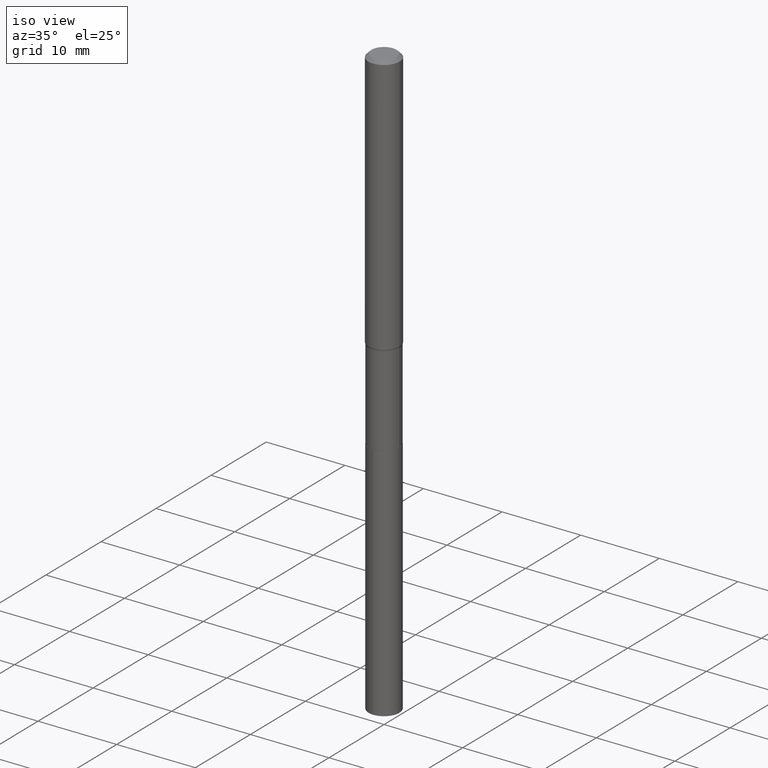
[diagram: clean part render]
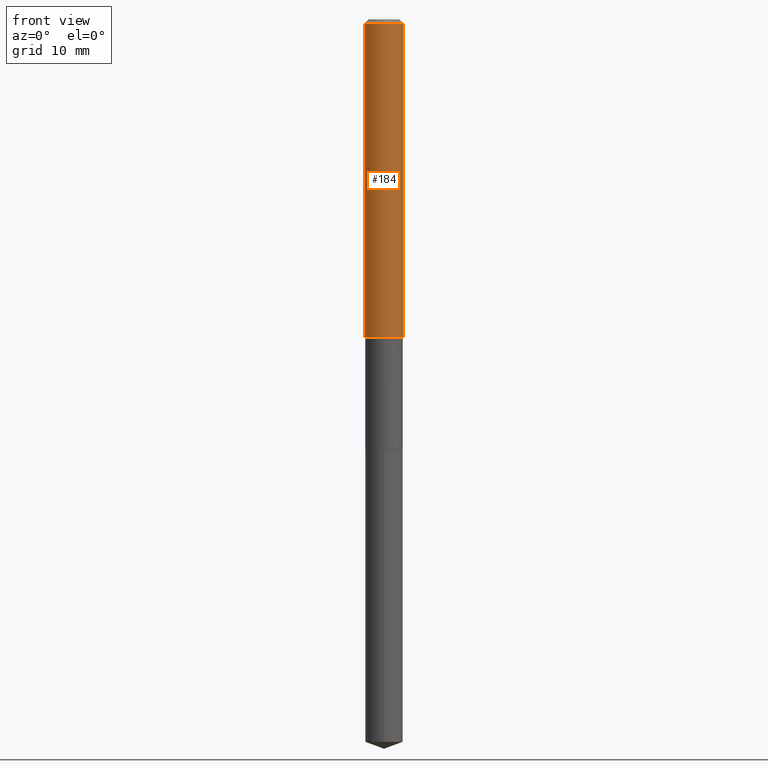
[diagram: tour spotlight — one face highlighted and labeled with its STEP entity id]
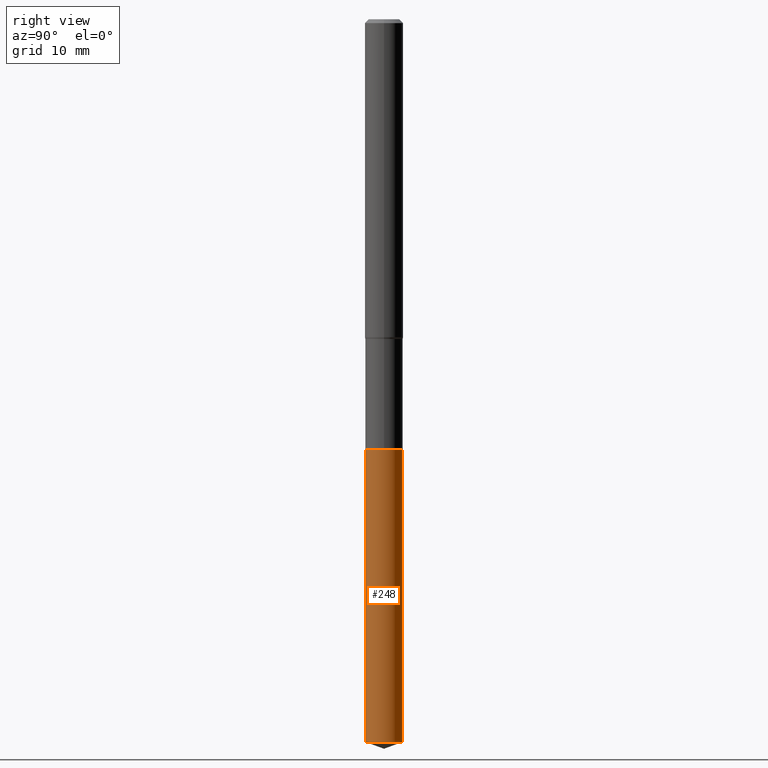
[diagram: tour spotlight — one face highlighted and labeled with its STEP entity id]
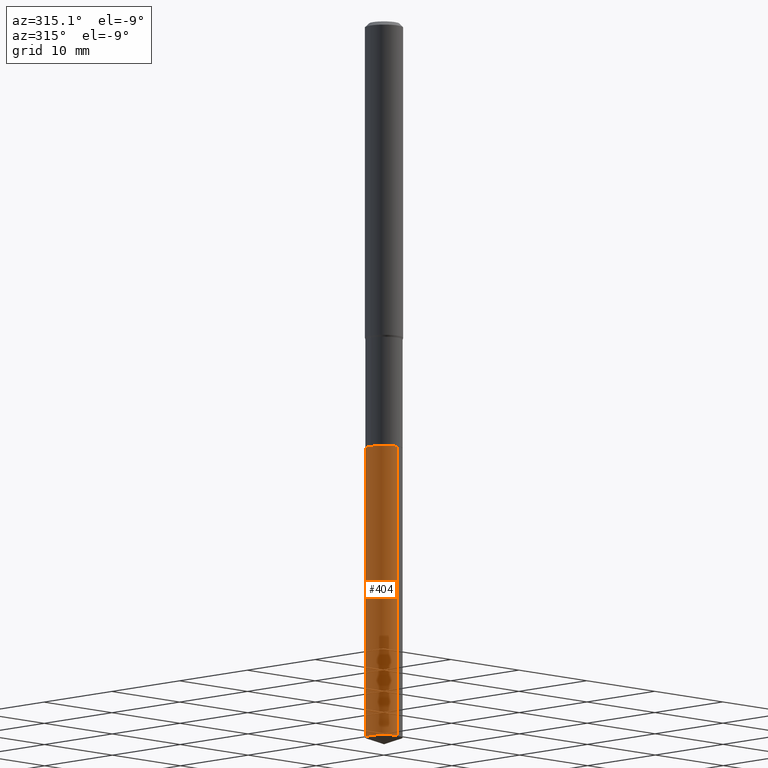
[diagram: tour spotlight — one face highlighted and labeled with its STEP entity id]
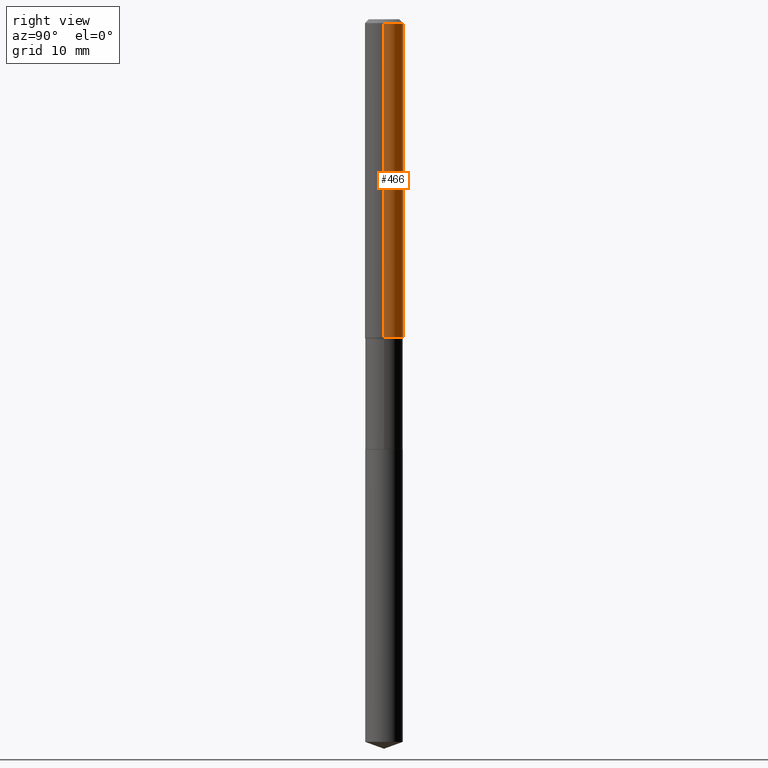
[diagram: tour spotlight — one face highlighted and labeled with its STEP entity id]
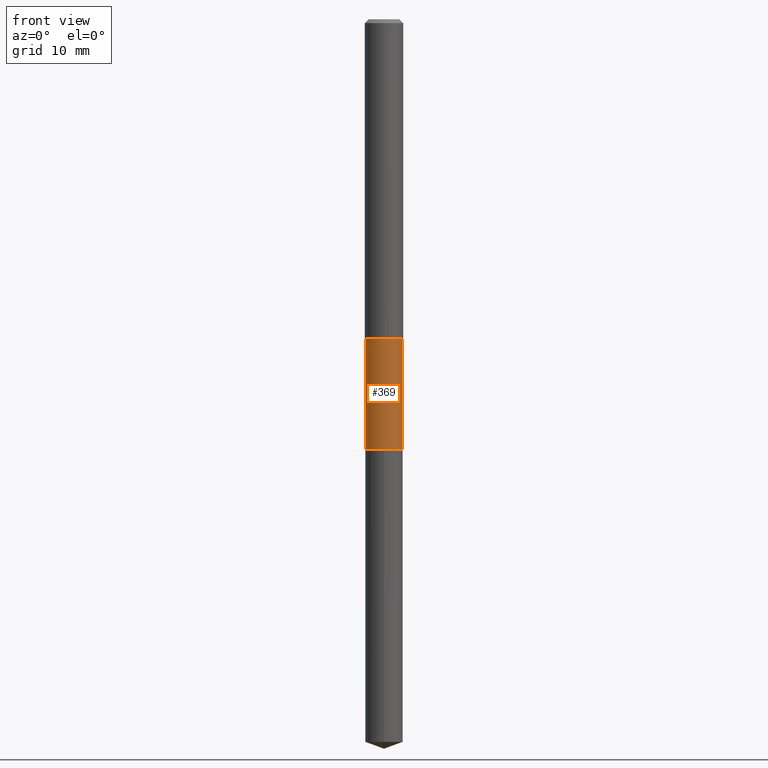
[diagram: tour spotlight — one face highlighted and labeled with its STEP entity id]
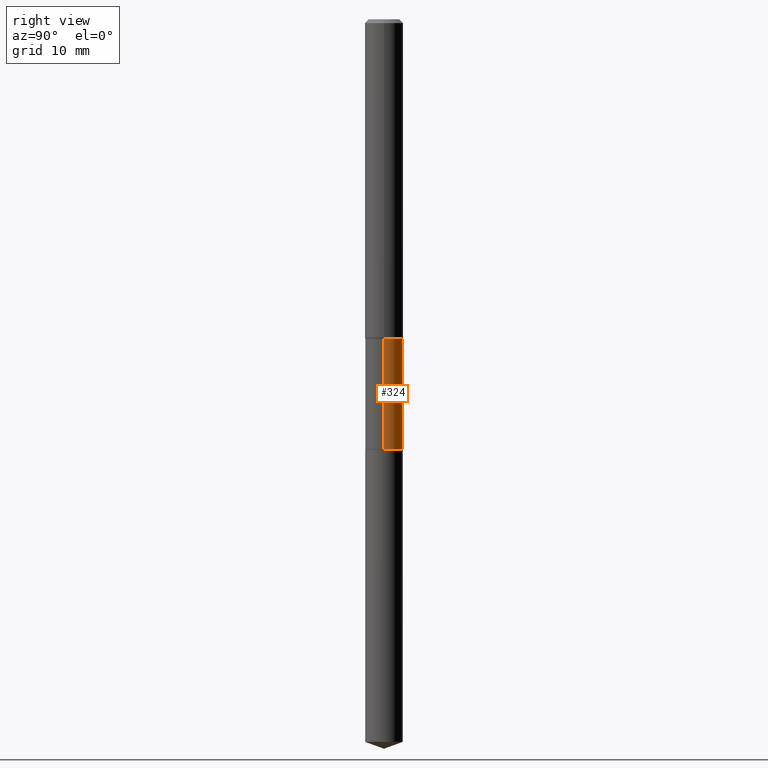
[diagram: tour spotlight — one face highlighted and labeled with its STEP entity id]
A machine part: a face-by-face anatomy tour. The part has 17 B-rep faces; the first image is the clean iso view, then the 6 largest visible faces are spotlighted one at a time (largest first), each with its STEP entity span.

Face 1 — front view, entity #184. In plain terms, the highlighted cylindrical surface (edge-blend (fillet) strip) has radius 2.0003 mm, axis along (-0, 0, 1).
Definition (entity closure, byte-faithful):
#12 = CARTESIAN_POINT ( 'NONE',  ( 3.189223658526408074E-29, -4.553366152526185029E-15, -1.304135898384861436 ) ) ;
#46 = DIRECTION ( 'NONE',  ( -2.445468806185136877E-29, 3.491481338843145188E-15, 1.000000000000000000 ) ) ;
#47 = VERTEX_POINT ( 'NONE', #418 ) ;
#49 = EDGE_CURVE ( 'NONE', #429, #381, #380, .T. ) ;
#69 = CARTESIAN_POINT ( 'NONE',  ( -0.07875000000000016709, -3.993813748115104650E-15, -1.304135898384861436 ) ) ;
#78 = DIRECTION ( 'NONE',  ( -2.445468806185136597E-29, 3.491481338843145583E-15, 1.000000000000000000 ) ) ;
#95 = DIRECTION ( 'NONE',  ( 1.000000000000000000, -6.982962677686265922E-15, 0.000000000000000000 ) ) ;
#100 = VECTOR ( 'NONE', #46, 39.37007874015748143 ) ;
#101 = ORIENTED_EDGE ( 'NONE', *, *, #334, .T. ) ;
#117 = AXIS2_PLACEMENT_3D ( 'NONE', #368, #260, #95 ) ;
#140 = VERTEX_POINT ( 'NONE', #156 ) ;
#147 = ORIENTED_EDGE ( 'NONE', *, *, #49, .F. ) ;
#156 = CARTESIAN_POINT ( 'NONE',  ( 0.07875000000000000056, -6.048991419545733705E-16, -0.01575000000000009032 ) ) ;
#158 = FACE_OUTER_BOUND ( 'NONE', #331, .T. ) ;
#168 = DIRECTION ( 'NONE',  ( -2.445468806185136597E-29, 3.491481338843145583E-15, 1.000000000000000000 ) ) ;
#184 = ADVANCED_FACE ( 'NONE', ( #158 ), #458, .T. ) ;
#206 = AXIS2_PLACEMENT_3D ( 'NONE', #12, #168, #316 ) ;
#217 = AXIS2_PLACEMENT_3D ( 'NONE', #268, #78, #382 ) ;
#238 = LINE ( 'NONE', #426, #434 ) ;
#260 = DIRECTION ( 'NONE',  ( -2.445468806185136597E-29, 3.491481338843145583E-15, 1.000000000000000000 ) ) ;
#268 = CARTESIAN_POINT ( 'NONE',  ( 0.000000000000000000, 0.000000000000000000, 0.000000000000000000 ) ) ;
#274 = CARTESIAN_POINT ( 'NONE',  ( -0.07875000000000008382, 5.595524044110794920E-16, -3.873661383575742696E-30 ) ) ;
#280 = ORIENTED_EDGE ( 'NONE', *, *, #476, .F. ) ;
#283 = DIRECTION ( 'NONE',  ( -2.445468806185136877E-29, 3.491481338843145188E-15, 1.000000000000000000 ) ) ;
#316 = DIRECTION ( 'NONE',  ( 1.000000000000000000, -6.982962677686271444E-15, 0.000000000000000000 ) ) ;
#331 = EDGE_LOOP ( 'NONE', ( #147, #483, #101, #280 ) ) ;
#334 = EDGE_CURVE ( 'NONE', #47, #140, #238, .T. ) ;
#368 = CARTESIAN_POINT ( 'NONE',  ( 3.851613369741612172E-31, -5.499083108677985842E-17, -0.01575000000000009032 ) ) ;
#380 = LINE ( 'NONE', #274, #100 ) ;
#381 = VERTEX_POINT ( 'NONE', #474 ) ;
#382 = DIRECTION ( 'NONE',  ( 1.000000000000000000, -6.982962677686267499E-15, 4.876176775795935232E-29 ) ) ;
#386 = CIRCLE ( 'NONE', #206, 0.07875000000000016709 ) ;
#414 = EDGE_CURVE ( 'NONE', #429, #47, #386, .T. ) ;
#418 = CARTESIAN_POINT ( 'NONE',  ( 0.07875000000000016709, -5.103274463393979164E-15, -1.304135898384861436 ) ) ;
#426 = CARTESIAN_POINT ( 'NONE',  ( 0.07875000000000008382, -5.499083108677941345E-16, 3.839989210939303220E-30 ) ) ;
#429 = VERTEX_POINT ( 'NONE', #69 ) ;
#434 = VECTOR ( 'NONE', #283, 39.37007874015748143 ) ;
#451 = CIRCLE ( 'NONE', #117, 0.07875000000000000056 ) ;
#458 = CYLINDRICAL_SURFACE ( 'NONE', #217, 0.07875000000000008382 ) ;
#474 = CARTESIAN_POINT ( 'NONE',  ( -0.07875000000000000056, -1.744626087395401803E-15, -0.01575000000000009032 ) ) ;
#476 = EDGE_CURVE ( 'NONE', #381, #140, #451, .T. ) ;
#483 = ORIENTED_EDGE ( 'NONE', *, *, #414, .T. ) ;

Face 2 — right view, entity #248. In plain terms, the highlighted cylindrical surface (edge-blend (fillet) strip) has radius 1.9495 mm, axis along (-0, 0, 1).
Definition (entity closure, byte-faithful):
#14 = AXIS2_PLACEMENT_3D ( 'NONE', #57, #17, #209 ) ;
#17 = DIRECTION ( 'NONE',  ( -2.445469513673863018E-29, 3.491480325679021518E-15, 1.000000000000000000 ) ) ;
#23 = ORIENTED_EDGE ( 'NONE', *, *, #348, .F. ) ;
#30 = VERTEX_POINT ( 'NONE', #230 ) ;
#34 = CARTESIAN_POINT ( 'NONE',  ( -5.359423855123483475E-16, -0.07675000000001032385, -2.964165284520069665 ) ) ;
#52 = LINE ( 'NONE', #245, #256 ) ;
#56 = VERTEX_POINT ( 'NONE', #198 ) ;
#57 = CARTESIAN_POINT ( 'NONE',  ( 4.313317880349343751E-29, -6.158274785451540536E-15, -1.763799999999999812 ) ) ;
#73 = CARTESIAN_POINT ( 'NONE',  ( 5.453415496959199755E-16, 0.07674999999999385092, -1.763800000000000257 ) ) ;
#75 = EDGE_CURVE ( 'NONE', #30, #56, #201, .T. ) ;
#76 = DIRECTION ( 'NONE',  ( -2.445469513673863018E-29, 3.491480325679021518E-15, 1.000000000000000000 ) ) ;
#84 = DIRECTION ( 'NONE',  ( -6.982962677686265133E-15, -1.000000000000000000, 3.559411066663534686E-15 ) ) ;
#86 = CARTESIAN_POINT ( 'NONE',  ( -5.359423855123778312E-16, -0.07675000000000616052, -1.763799999999999590 ) ) ;
#91 = AXIS2_PLACEMENT_3D ( 'NONE', #240, #243, #84 ) ;
#99 = ORIENTED_EDGE ( 'NONE', *, *, #252, .F. ) ;
#145 = EDGE_CURVE ( 'NONE', #477, #30, #307, .T. ) ;
#171 = ORIENTED_EDGE ( 'NONE', *, *, #145, .T. ) ;
#189 = CIRCLE ( 'NONE', #14, 0.07675000000000001266 ) ;
#198 = CARTESIAN_POINT ( 'NONE',  ( 5.453415496959496564E-16, 0.07674999999999386480, -1.763800000000000257 ) ) ;
#201 = LINE ( 'NONE', #73, #401 ) ;
#209 = DIRECTION ( 'NONE',  ( -6.982962677686265133E-15, -1.000000000000000000, 3.559411066663534686E-15 ) ) ;
#218 = EDGE_LOOP ( 'NONE', ( #171, #251, #99, #23 ) ) ;
#230 = CARTESIAN_POINT ( 'NONE',  ( 5.453415496959491634E-16, 0.07674999999998964595, -2.964165284520069665 ) ) ;
#240 = CARTESIAN_POINT ( 'NONE',  ( 4.313317880349343751E-29, -6.158274785451540536E-15, -1.763799999999999812 ) ) ;
#243 = DIRECTION ( 'NONE',  ( -2.445469513673863018E-29, 3.491480325679021518E-15, 1.000000000000000000 ) ) ;
#245 = CARTESIAN_POINT ( 'NONE',  ( -5.359423855123778312E-16, -0.07675000000000616052, -1.763799999999999590 ) ) ;
#248 = ADVANCED_FACE ( 'NONE', ( #427 ), #319, .T. ) ;
#251 = ORIENTED_EDGE ( 'NONE', *, *, #75, .T. ) ;
#252 = EDGE_CURVE ( 'NONE', #271, #56, #189, .T. ) ;
#256 = VECTOR ( 'NONE', #385, 39.37007874015748143 ) ;
#271 = VERTEX_POINT ( 'NONE', #86 ) ;
#304 = CARTESIAN_POINT ( 'NONE',  ( 7.248774588915626534E-29, -1.034932655998146602E-14, -2.964165284520069665 ) ) ;
#307 = CIRCLE ( 'NONE', #413, 0.07675000000000001266 ) ;
#319 = CYLINDRICAL_SURFACE ( 'NONE', #91, 0.07675000000000001266 ) ;
#343 = DIRECTION ( 'NONE',  ( -2.445469513673863018E-29, 3.491480325679021518E-15, 1.000000000000000000 ) ) ;
#348 = EDGE_CURVE ( 'NONE', #477, #271, #52, .T. ) ;
#385 = DIRECTION ( 'NONE',  ( -2.445469513673863018E-29, 3.491480325679021518E-15, 1.000000000000000000 ) ) ;
#401 = VECTOR ( 'NONE', #76, 39.37007874015748143 ) ;
#413 = AXIS2_PLACEMENT_3D ( 'NONE', #304, #343, #455 ) ;
#427 = FACE_OUTER_BOUND ( 'NONE', #218, .T. ) ;
#455 = DIRECTION ( 'NONE',  ( -6.982962677686265133E-15, -1.000000000000000000, 0.000000000000000000 ) ) ;
#477 = VERTEX_POINT ( 'NONE', #34 ) ;

Face 3 — auxiliary view, entity #404. In plain terms, the highlighted cylindrical surface (edge-blend (fillet) strip) has radius 1.9495 mm, axis along (-0, 0, 1).
Definition (entity closure, byte-faithful):
#9 = DIRECTION ( 'NONE',  ( -2.445469513673863018E-29, 3.491480325679021518E-15, 1.000000000000000000 ) ) ;
#18 = DIRECTION ( 'NONE',  ( -2.445469513673863018E-29, 3.491480325679021518E-15, 1.000000000000000000 ) ) ;
#30 = VERTEX_POINT ( 'NONE', #230 ) ;
#34 = CARTESIAN_POINT ( 'NONE',  ( -5.359423855123483475E-16, -0.07675000000001032385, -2.964165284520069665 ) ) ;
#52 = LINE ( 'NONE', #245, #256 ) ;
#56 = VERTEX_POINT ( 'NONE', #198 ) ;
#73 = CARTESIAN_POINT ( 'NONE',  ( 5.453415496959199755E-16, 0.07674999999999385092, -1.763800000000000257 ) ) ;
#75 = EDGE_CURVE ( 'NONE', #30, #56, #201, .T. ) ;
#76 = DIRECTION ( 'NONE',  ( -2.445469513673863018E-29, 3.491480325679021518E-15, 1.000000000000000000 ) ) ;
#86 = CARTESIAN_POINT ( 'NONE',  ( -5.359423855123778312E-16, -0.07675000000000616052, -1.763799999999999590 ) ) ;
#89 = CIRCLE ( 'NONE', #449, 0.07675000000000001266 ) ;
#104 = CIRCLE ( 'NONE', #226, 0.07675000000000001266 ) ;
#132 = DIRECTION ( 'NONE',  ( -2.445469513673863018E-29, 3.491480325679021518E-15, 1.000000000000000000 ) ) ;
#144 = EDGE_LOOP ( 'NONE', ( #180, #299, #379, #425 ) ) ;
#172 = DIRECTION ( 'NONE',  ( -6.982962677686265133E-15, -1.000000000000000000, 3.559411066663534686E-15 ) ) ;
#180 = ORIENTED_EDGE ( 'NONE', *, *, #75, .F. ) ;
#198 = CARTESIAN_POINT ( 'NONE',  ( 5.453415496959496564E-16, 0.07674999999999386480, -1.763800000000000257 ) ) ;
#201 = LINE ( 'NONE', #73, #401 ) ;
#204 = CARTESIAN_POINT ( 'NONE',  ( 4.313317880349343751E-29, -6.158274785451540536E-15, -1.763799999999999812 ) ) ;
#226 = AXIS2_PLACEMENT_3D ( 'NONE', #420, #18, #463 ) ;
#230 = CARTESIAN_POINT ( 'NONE',  ( 5.453415496959491634E-16, 0.07674999999998964595, -2.964165284520069665 ) ) ;
#231 = EDGE_CURVE ( 'NONE', #56, #271, #89, .T. ) ;
#235 = FACE_OUTER_BOUND ( 'NONE', #144, .T. ) ;
#245 = CARTESIAN_POINT ( 'NONE',  ( -5.359423855123778312E-16, -0.07675000000000616052, -1.763799999999999590 ) ) ;
#256 = VECTOR ( 'NONE', #385, 39.37007874015748143 ) ;
#271 = VERTEX_POINT ( 'NONE', #86 ) ;
#299 = ORIENTED_EDGE ( 'NONE', *, *, #330, .T. ) ;
#305 = AXIS2_PLACEMENT_3D ( 'NONE', #388, #9, #353 ) ;
#330 = EDGE_CURVE ( 'NONE', #30, #477, #104, .T. ) ;
#347 = CYLINDRICAL_SURFACE ( 'NONE', #305, 0.07675000000000001266 ) ;
#348 = EDGE_CURVE ( 'NONE', #477, #271, #52, .T. ) ;
#353 = DIRECTION ( 'NONE',  ( -6.982962677686265133E-15, -1.000000000000000000, 3.559411066663534686E-15 ) ) ;
#379 = ORIENTED_EDGE ( 'NONE', *, *, #348, .T. ) ;
#385 = DIRECTION ( 'NONE',  ( -2.445469513673863018E-29, 3.491480325679021518E-15, 1.000000000000000000 ) ) ;
#388 = CARTESIAN_POINT ( 'NONE',  ( 4.313317880349343751E-29, -6.158274785451540536E-15, -1.763799999999999812 ) ) ;
#401 = VECTOR ( 'NONE', #76, 39.37007874015748143 ) ;
#404 = ADVANCED_FACE ( 'NONE', ( #235 ), #347, .T. ) ;
#420 = CARTESIAN_POINT ( 'NONE',  ( 7.248774588915626534E-29, -1.034932655998146602E-14, -2.964165284520069665 ) ) ;
#425 = ORIENTED_EDGE ( 'NONE', *, *, #231, .F. ) ;
#449 = AXIS2_PLACEMENT_3D ( 'NONE', #204, #132, #172 ) ;
#463 = DIRECTION ( 'NONE',  ( -6.982962677686265133E-15, -1.000000000000000000, 0.000000000000000000 ) ) ;
#477 = VERTEX_POINT ( 'NONE', #34 ) ;

Face 4 — right view, entity #466. In plain terms, the highlighted cylindrical surface (edge-blend (fillet) strip) has radius 2.0003 mm, axis along (-0, 0, 1).
Definition (entity closure, byte-faithful):
#43 = ORIENTED_EDGE ( 'NONE', *, *, #289, .F. ) ;
#46 = DIRECTION ( 'NONE',  ( -2.445468806185136877E-29, 3.491481338843145188E-15, 1.000000000000000000 ) ) ;
#47 = VERTEX_POINT ( 'NONE', #418 ) ;
#49 = EDGE_CURVE ( 'NONE', #429, #381, #380, .T. ) ;
#69 = CARTESIAN_POINT ( 'NONE',  ( -0.07875000000000016709, -3.993813748115104650E-15, -1.304135898384861436 ) ) ;
#100 = VECTOR ( 'NONE', #46, 39.37007874015748143 ) ;
#110 = FACE_OUTER_BOUND ( 'NONE', #254, .T. ) ;
#124 = ORIENTED_EDGE ( 'NONE', *, *, #49, .T. ) ;
#140 = VERTEX_POINT ( 'NONE', #156 ) ;
#156 = CARTESIAN_POINT ( 'NONE',  ( 0.07875000000000000056, -6.048991419545733705E-16, -0.01575000000000009032 ) ) ;
#165 = DIRECTION ( 'NONE',  ( 1.000000000000000000, -6.982962677686271444E-15, 0.000000000000000000 ) ) ;
#167 = AXIS2_PLACEMENT_3D ( 'NONE', #270, #393, #312 ) ;
#215 = CARTESIAN_POINT ( 'NONE',  ( 0.000000000000000000, 0.000000000000000000, 0.000000000000000000 ) ) ;
#232 = CIRCLE ( 'NONE', #244, 0.07875000000000016709 ) ;
#238 = LINE ( 'NONE', #426, #434 ) ;
#239 = EDGE_CURVE ( 'NONE', #47, #429, #232, .T. ) ;
#244 = AXIS2_PLACEMENT_3D ( 'NONE', #464, #277, #165 ) ;
#254 = EDGE_LOOP ( 'NONE', ( #407, #124, #43, #329 ) ) ;
#270 = CARTESIAN_POINT ( 'NONE',  ( 3.851613369741612172E-31, -5.499083108677985842E-17, -0.01575000000000009032 ) ) ;
#274 = CARTESIAN_POINT ( 'NONE',  ( -0.07875000000000008382, 5.595524044110794920E-16, -3.873661383575742696E-30 ) ) ;
#277 = DIRECTION ( 'NONE',  ( -2.445468806185136597E-29, 3.491481338843145583E-15, 1.000000000000000000 ) ) ;
#283 = DIRECTION ( 'NONE',  ( -2.445468806185136877E-29, 3.491481338843145188E-15, 1.000000000000000000 ) ) ;
#289 = EDGE_CURVE ( 'NONE', #140, #381, #313, .T. ) ;
#312 = DIRECTION ( 'NONE',  ( 1.000000000000000000, -6.982962677686265922E-15, 0.000000000000000000 ) ) ;
#313 = CIRCLE ( 'NONE', #167, 0.07875000000000000056 ) ;
#329 = ORIENTED_EDGE ( 'NONE', *, *, #334, .F. ) ;
#332 = AXIS2_PLACEMENT_3D ( 'NONE', #215, #450, #437 ) ;
#334 = EDGE_CURVE ( 'NONE', #47, #140, #238, .T. ) ;
#380 = LINE ( 'NONE', #274, #100 ) ;
#381 = VERTEX_POINT ( 'NONE', #474 ) ;
#393 = DIRECTION ( 'NONE',  ( -2.445468806185136597E-29, 3.491481338843145583E-15, 1.000000000000000000 ) ) ;
#407 = ORIENTED_EDGE ( 'NONE', *, *, #239, .T. ) ;
#412 = CYLINDRICAL_SURFACE ( 'NONE', #332, 0.07875000000000008382 ) ;
#418 = CARTESIAN_POINT ( 'NONE',  ( 0.07875000000000016709, -5.103274463393979164E-15, -1.304135898384861436 ) ) ;
#426 = CARTESIAN_POINT ( 'NONE',  ( 0.07875000000000008382, -5.499083108677941345E-16, 3.839989210939303220E-30 ) ) ;
#429 = VERTEX_POINT ( 'NONE', #69 ) ;
#434 = VECTOR ( 'NONE', #283, 39.37007874015748143 ) ;
#437 = DIRECTION ( 'NONE',  ( 1.000000000000000000, -6.982962677686267499E-15, 4.876176775795935232E-29 ) ) ;
#450 = DIRECTION ( 'NONE',  ( -2.445468806185136597E-29, 3.491481338843145583E-15, 1.000000000000000000 ) ) ;
#464 = CARTESIAN_POINT ( 'NONE',  ( 3.189223658526408074E-29, -4.553366152526185029E-15, -1.304135898384861436 ) ) ;
#466 = ADVANCED_FACE ( 'NONE', ( #110 ), #412, .T. ) ;
#474 = CARTESIAN_POINT ( 'NONE',  ( -0.07875000000000000056, -1.744626087395401803E-15, -0.01575000000000009032 ) ) ;

Face 5 — front view, entity #369. In plain terms, the highlighted cylindrical surface (edge-blend (fillet) strip) has radius 1.9494 mm, axis along (-0, 0, 1).
Definition (entity closure, byte-faithful):
#32 = AXIS2_PLACEMENT_3D ( 'NONE', #461, #202, #350 ) ;
#45 = DIRECTION ( 'NONE',  ( -2.445468806185136597E-29, 3.491481338843145583E-15, 1.000000000000000000 ) ) ;
#74 = AXIS2_PLACEMENT_3D ( 'NONE', #392, #136, #286 ) ;
#79 = CYLINDRICAL_SURFACE ( 'NONE', #32, 0.07674999999999997102 ) ;
#87 = ORIENTED_EDGE ( 'NONE', *, *, #486, .F. ) ;
#103 = EDGE_CURVE ( 'NONE', #438, #247, #118, .T. ) ;
#109 = AXIS2_PLACEMENT_3D ( 'NONE', #422, #45, #197 ) ;
#118 = LINE ( 'NONE', #341, #249 ) ;
#136 = DIRECTION ( 'NONE',  ( -2.445468806185136597E-29, 3.491481338843145583E-15, 1.000000000000000000 ) ) ;
#149 = EDGE_LOOP ( 'NONE', ( #87, #257, #364, #242 ) ) ;
#178 = CARTESIAN_POINT ( 'NONE',  ( -0.07674999999999997102, 5.453415496958766868E-16, -3.775282681770638931E-30 ) ) ;
#197 = DIRECTION ( 'NONE',  ( 1.000000000000000000, -6.982962677686271444E-15, 0.000000000000000000 ) ) ;
#202 = DIRECTION ( 'NONE',  ( -2.445468806185136597E-29, 3.491481338843145583E-15, 1.000000000000000000 ) ) ;
#207 = CARTESIAN_POINT ( 'NONE',  ( -0.07674999999999994327, -4.822636434708517136E-15, -1.311600000000000099 ) ) ;
#223 = LINE ( 'NONE', #178, #394 ) ;
#242 = ORIENTED_EDGE ( 'NONE', *, *, #265, .F. ) ;
#247 = VERTEX_POINT ( 'NONE', #361 ) ;
#249 = VECTOR ( 'NONE', #416, 39.37007874015748143 ) ;
#257 = ORIENTED_EDGE ( 'NONE', *, *, #384, .T. ) ;
#265 = EDGE_CURVE ( 'NONE', #327, #247, #485, .T. ) ;
#286 = DIRECTION ( 'NONE',  ( 1.000000000000000000, -6.982962677686265133E-15, 0.000000000000000000 ) ) ;
#301 = CARTESIAN_POINT ( 'NONE',  ( -0.07675000000000001266, -4.822636434708517136E-15, -1.763300000000000090 ) ) ;
#327 = VERTEX_POINT ( 'NONE', #207 ) ;
#328 = CARTESIAN_POINT ( 'NONE',  ( 0.07675000000000001266, -6.692471430294540350E-15, -1.763300000000000090 ) ) ;
#337 = DIRECTION ( 'NONE',  ( -2.445468806185136877E-29, 3.491481338843145188E-15, 1.000000000000000000 ) ) ;
#341 = CARTESIAN_POINT ( 'NONE',  ( 0.07674999999999997102, -5.359423855124207255E-16, 3.742465675423379404E-30 ) ) ;
#350 = DIRECTION ( 'NONE',  ( 1.000000000000000000, -6.982962677686265922E-15, 4.876176775795935793E-29 ) ) ;
#361 = CARTESIAN_POINT ( 'NONE',  ( 0.07674999999999994327, -5.115369309539090128E-15, -1.311600000000000099 ) ) ;
#362 = FACE_OUTER_BOUND ( 'NONE', #149, .T. ) ;
#364 = ORIENTED_EDGE ( 'NONE', *, *, #103, .T. ) ;
#369 = ADVANCED_FACE ( 'NONE', ( #362 ), #79, .T. ) ;
#384 = EDGE_CURVE ( 'NONE', #442, #438, #423, .T. ) ;
#392 = CARTESIAN_POINT ( 'NONE',  ( 3.207476886192425525E-29, -4.579426924026669600E-15, -1.311600000000000099 ) ) ;
#394 = VECTOR ( 'NONE', #337, 39.37007874015748143 ) ;
#416 = DIRECTION ( 'NONE',  ( -2.445468806185136877E-29, 3.491481338843145188E-15, 1.000000000000000000 ) ) ;
#422 = CARTESIAN_POINT ( 'NONE',  ( 4.312095145946251510E-29, -6.156529044782119032E-15, -1.763300000000000090 ) ) ;
#423 = CIRCLE ( 'NONE', #109, 0.07675000000000001266 ) ;
#438 = VERTEX_POINT ( 'NONE', #328 ) ;
#442 = VERTEX_POINT ( 'NONE', #301 ) ;
#461 = CARTESIAN_POINT ( 'NONE',  ( 0.000000000000000000, 0.000000000000000000, 0.000000000000000000 ) ) ;
#485 = CIRCLE ( 'NONE', #74, 0.07674999999999994327 ) ;
#486 = EDGE_CURVE ( 'NONE', #442, #327, #223, .T. ) ;

Face 6 — right view, entity #324. In plain terms, the highlighted cylindrical surface (edge-blend (fillet) strip) has radius 1.9494 mm, axis along (-0, 0, 1).
Definition (entity closure, byte-faithful):
#6 = CARTESIAN_POINT ( 'NONE',  ( 0.000000000000000000, 0.000000000000000000, 0.000000000000000000 ) ) ;
#27 = ORIENTED_EDGE ( 'NONE', *, *, #68, .F. ) ;
#50 = CARTESIAN_POINT ( 'NONE',  ( 4.312095145946251510E-29, -6.156529044782119032E-15, -1.763300000000000090 ) ) ;
#60 = EDGE_CURVE ( 'NONE', #438, #442, #224, .T. ) ;
#68 = EDGE_CURVE ( 'NONE', #247, #327, #373, .T. ) ;
#82 = DIRECTION ( 'NONE',  ( 1.000000000000000000, -6.982962677686265133E-15, 0.000000000000000000 ) ) ;
#93 = EDGE_LOOP ( 'NONE', ( #371, #325, #27, #297 ) ) ;
#103 = EDGE_CURVE ( 'NONE', #438, #247, #118, .T. ) ;
#118 = LINE ( 'NONE', #341, #249 ) ;
#134 = CYLINDRICAL_SURFACE ( 'NONE', #159, 0.07674999999999997102 ) ;
#146 = AXIS2_PLACEMENT_3D ( 'NONE', #50, #349, #227 ) ;
#159 = AXIS2_PLACEMENT_3D ( 'NONE', #6, #273, #359 ) ;
#163 = CARTESIAN_POINT ( 'NONE',  ( 3.207476886192425525E-29, -4.579426924026669600E-15, -1.311600000000000099 ) ) ;
#178 = CARTESIAN_POINT ( 'NONE',  ( -0.07674999999999997102, 5.453415496958766868E-16, -3.775282681770638931E-30 ) ) ;
#192 = DIRECTION ( 'NONE',  ( -2.445468806185136597E-29, 3.491481338843145583E-15, 1.000000000000000000 ) ) ;
#207 = CARTESIAN_POINT ( 'NONE',  ( -0.07674999999999994327, -4.822636434708517136E-15, -1.311600000000000099 ) ) ;
#223 = LINE ( 'NONE', #178, #394 ) ;
#224 = CIRCLE ( 'NONE', #146, 0.07675000000000001266 ) ;
#227 = DIRECTION ( 'NONE',  ( 1.000000000000000000, -6.982962677686271444E-15, 0.000000000000000000 ) ) ;
#247 = VERTEX_POINT ( 'NONE', #361 ) ;
#249 = VECTOR ( 'NONE', #416, 39.37007874015748143 ) ;
#273 = DIRECTION ( 'NONE',  ( -2.445468806185136597E-29, 3.491481338843145583E-15, 1.000000000000000000 ) ) ;
#297 = ORIENTED_EDGE ( 'NONE', *, *, #103, .F. ) ;
#301 = CARTESIAN_POINT ( 'NONE',  ( -0.07675000000000001266, -4.822636434708517136E-15, -1.763300000000000090 ) ) ;
#324 = ADVANCED_FACE ( 'NONE', ( #432 ), #134, .T. ) ;
#325 = ORIENTED_EDGE ( 'NONE', *, *, #486, .T. ) ;
#327 = VERTEX_POINT ( 'NONE', #207 ) ;
#328 = CARTESIAN_POINT ( 'NONE',  ( 0.07675000000000001266, -6.692471430294540350E-15, -1.763300000000000090 ) ) ;
#337 = DIRECTION ( 'NONE',  ( -2.445468806185136877E-29, 3.491481338843145188E-15, 1.000000000000000000 ) ) ;
#341 = CARTESIAN_POINT ( 'NONE',  ( 0.07674999999999997102, -5.359423855124207255E-16, 3.742465675423379404E-30 ) ) ;
#349 = DIRECTION ( 'NONE',  ( -2.445468806185136597E-29, 3.491481338843145583E-15, 1.000000000000000000 ) ) ;
#359 = DIRECTION ( 'NONE',  ( 1.000000000000000000, -6.982962677686265922E-15, 4.876176775795935793E-29 ) ) ;
#361 = CARTESIAN_POINT ( 'NONE',  ( 0.07674999999999994327, -5.115369309539090128E-15, -1.311600000000000099 ) ) ;
#371 = ORIENTED_EDGE ( 'NONE', *, *, #60, .T. ) ;
#373 = CIRCLE ( 'NONE', #439, 0.07674999999999994327 ) ;
#394 = VECTOR ( 'NONE', #337, 39.37007874015748143 ) ;
#416 = DIRECTION ( 'NONE',  ( -2.445468806185136877E-29, 3.491481338843145188E-15, 1.000000000000000000 ) ) ;
#432 = FACE_OUTER_BOUND ( 'NONE', #93, .T. ) ;
#438 = VERTEX_POINT ( 'NONE', #328 ) ;
#439 = AXIS2_PLACEMENT_3D ( 'NONE', #163, #192, #82 ) ;
#442 = VERTEX_POINT ( 'NONE', #301 ) ;
#486 = EDGE_CURVE ( 'NONE', #442, #327, #223, .T. ) ;